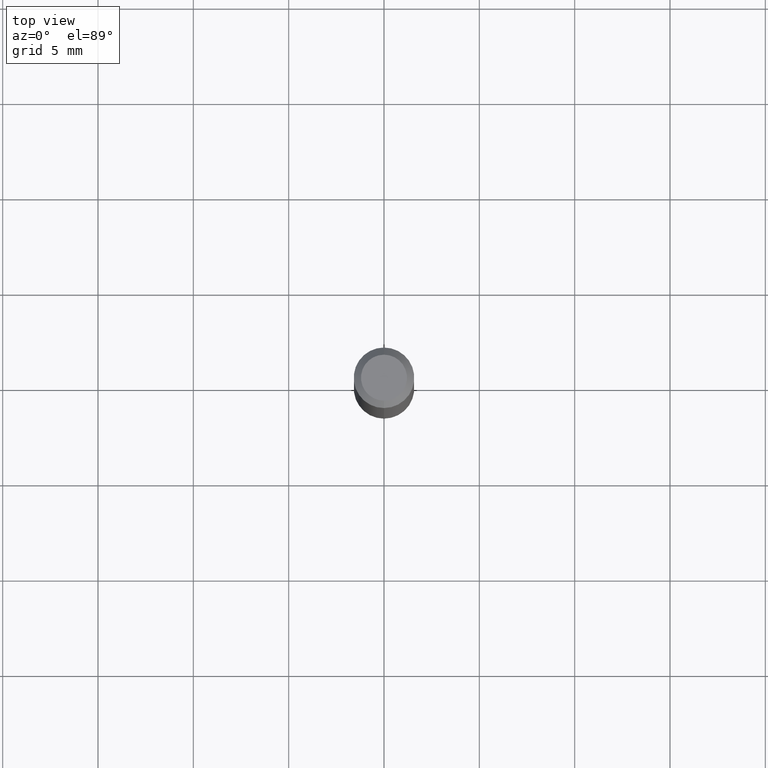
[diagram: clean part render]
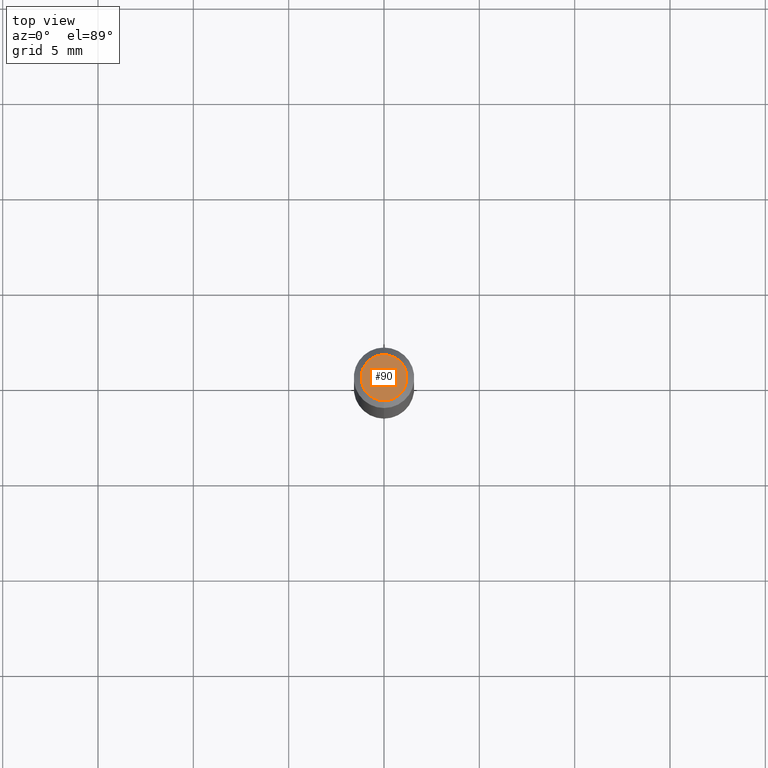
[diagram: same view with one face highlighted and labeled with its STEP entity id]
A machine part, top view. The second image highlights one B-rep face of the part: STEP entity #90.
In plain terms, the highlighted planar face has unit normal (0, -0, -1).
Its self-contained STEP definition (entity closure, byte-faithful):
#19 = DIRECTION ( 'NONE',  ( 6.982962677686265922E-15, 1.000000000000000000, -3.491456101148545241E-15 ) ) ;
#22 = PLANE ( 'NONE',  #110 ) ;
#30 = EDGE_CURVE ( 'NONE', #112, #424, #242, .T. ) ;
#37 = EDGE_CURVE ( 'NONE', #424, #112, #488, .T. ) ;
#90 = ADVANCED_FACE ( 'NONE', ( #453 ), #22, .F. ) ;
#110 = AXIS2_PLACEMENT_3D ( 'NONE', #371, #305, #19 ) ;
#112 = VERTEX_POINT ( 'NONE', #306 ) ;
#128 = CARTESIAN_POINT ( 'NONE',  ( -6.680667879903571432E-45, 9.538085489645678336E-31, 2.731836005759327790E-16 ) ) ;
#178 = DIRECTION ( 'NONE',  ( -6.982962677686265133E-15, -1.000000000000000000, 3.491456101148544846E-15 ) ) ;
#187 = CARTESIAN_POINT ( 'NONE',  ( -3.773273898774340269E-16, -0.04750000000000000749, 4.390277653804887312E-16 ) ) ;
#233 = ORIENTED_EDGE ( 'NONE', *, *, #30, .T. ) ;
#242 = CIRCLE ( 'NONE', #300, 0.04750000000000000749 ) ;
#264 = CARTESIAN_POINT ( 'NONE',  ( -6.680667879903571432E-45, 9.538085489645678336E-31, 2.731836005759327790E-16 ) ) ;
#266 = DIRECTION ( 'NONE',  ( -2.445486429573083164E-29, 3.491456101148545241E-15, 1.000000000000000000 ) ) ;
#299 = DIRECTION ( 'NONE',  ( -2.445486429573083164E-29, 3.491456101148545241E-15, 1.000000000000000000 ) ) ;
#300 = AXIS2_PLACEMENT_3D ( 'NONE', #264, #299, #178 ) ;
#305 = DIRECTION ( 'NONE',  ( 2.445486429573082884E-29, -3.491456101148545241E-15, -1.000000000000000000 ) ) ;
#306 = CARTESIAN_POINT ( 'NONE',  ( 3.840629472727447874E-16, 0.04750000000000000749, 1.073394357713768884E-16 ) ) ;
#359 = EDGE_LOOP ( 'NONE', ( #233, #465 ) ) ;
#371 = CARTESIAN_POINT ( 'NONE',  ( 3.316907271900976589E-16, 0.04750000000000000749, -2.925236451658952572E-17 ) ) ;
#424 = VERTEX_POINT ( 'NONE', #187 ) ;
#452 = DIRECTION ( 'NONE',  ( -6.982962677686265133E-15, -1.000000000000000000, 3.491456101148544846E-15 ) ) ;
#453 = FACE_OUTER_BOUND ( 'NONE', #359, .T. ) ;
#465 = ORIENTED_EDGE ( 'NONE', *, *, #37, .T. ) ;
#468 = AXIS2_PLACEMENT_3D ( 'NONE', #128, #266, #452 ) ;
#488 = CIRCLE ( 'NONE', #468, 0.04750000000000000749 ) ;